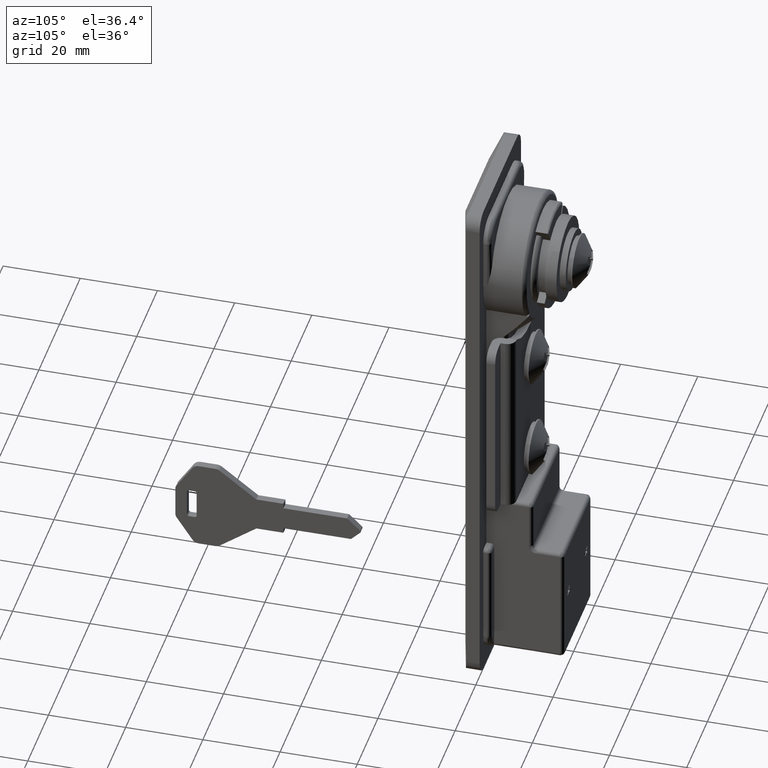
[diagram: clean part render]
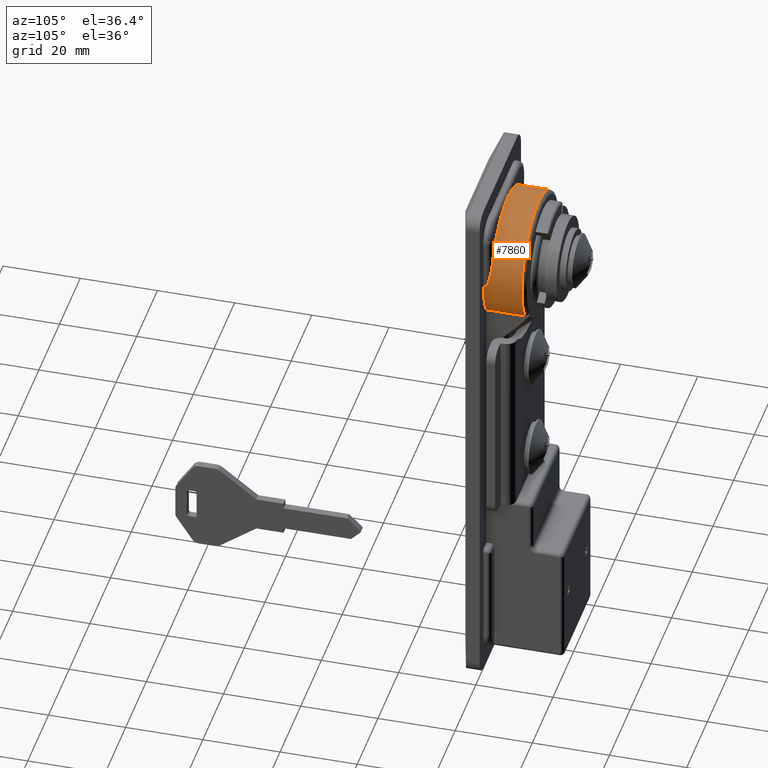
[diagram: same view with one face highlighted and labeled with its STEP entity id]
A machine part, auxiliary view. The second image highlights one B-rep face of the part: STEP entity #7860.
In plain terms, the highlighted face is a freeform B-spline surface patch.
Its self-contained STEP definition (entity closure, byte-faithful):
#4819=CARTESIAN_POINT('',(11.869441024556441,-13.400000000000141,-9.627513178432709));
#4820=VERTEX_POINT('',#4819);
#4885=CARTESIAN_POINT('',(11.869441024556441,-13.401034102112000,-9.626073706082419));
#4886=VERTEX_POINT('',#4885);
#4894=CARTESIAN_POINT('',(11.869441024556441,-13.400000000000141,-9.627513178432709));
#4895=CARTESIAN_POINT('',(11.869441024556441,-13.401034102112000,-9.626073706082419));
#4896=QUASI_UNIFORM_CURVE('',1,(#4894,#4895),.UNSPECIFIED.,.F.,.U.);
#4897=EDGE_CURVE('',#4820,#4886,#4896,.T.);
#5406=CARTESIAN_POINT('',(2.000000000000085,16.499970000000001,0.0));
#5407=VERTEX_POINT('',#5406);
#5408=CARTESIAN_POINT('',(3.000000000000085,15.499969999999999,5.656848946188919));
#5409=VERTEX_POINT('',#5408);
#5410=CARTESIAN_POINT('',(2.000000000000085,16.499970000000001,0.0));
#5411=CARTESIAN_POINT('',(2.014631581955225,16.499970000000008,0.059433975832413));
#5412=CARTESIAN_POINT('',(2.029319516271816,16.499647584783411,0.119096332957418));
#5413=CARTESIAN_POINT('',(2.058610617452791,16.498358553156841,0.238158371781019));
#5414=CARTESIAN_POINT('',(2.102492779955237,16.495459331913992,0.416651873815821));
#5415=CARTESIAN_POINT('',(2.146126896088788,16.489671339647021,0.594866222305607));
#5416=CARTESIAN_POINT('',(2.232837241315952,16.474256438833500,0.950974044292691));
#5417=CARTESIAN_POINT('',(2.289903452636324,16.458864583393950,1.187951112350682));
#5418=CARTESIAN_POINT('',(2.456992132655905,16.397326967065720,1.898010329734721));
#5419=CARTESIAN_POINT('',(2.563048036393508,16.335881606977289,2.370196234682563));
#5420=CARTESIAN_POINT('',(2.704955476159614,16.211995703977159,3.078582029428786));
#5421=CARTESIAN_POINT('',(2.749368883318634,16.165399761123780,3.314732575684789));
#5422=CARTESIAN_POINT('',(2.810050575421402,16.087256716884031,3.669309089877301));
#5423=CARTESIAN_POINT('',(2.829297332602070,16.059806588589169,3.787660443999647));
#5424=CARTESIAN_POINT('',(2.865334344282152,16.002312059148800,4.023651086209230));
#5425=CARTESIAN_POINT('',(2.882140291010408,15.972252550269030,4.141369204917849));
#5426=CARTESIAN_POINT('',(2.928384040325299,15.878113193670091,4.493734870947525));
#5427=CARTESIAN_POINT('',(2.953700714009987,15.810077635525520,4.727590306123485));
#5428=CARTESIAN_POINT('',(2.989475344891957,15.663219316584589,5.193479140659792));
#5429=CARTESIAN_POINT('',(3.000000000000085,15.584400120543680,5.425507372819686));
#5430=CARTESIAN_POINT('',(3.000000000000085,15.499969999999999,5.656848946188919));
#5431=B_SPLINE_CURVE_WITH_KNOTS('',3,(#5410,#5411,#5412,#5413,#5414,#5415,#5416,#5417,#5418,#5419,#5420,#5421,#5422,#5423,#5424,#5425,#5426,#5427,#5428,#5429,#5430),.UNSPECIFIED.,.F.,.U.,(4,2,1,2,2,2,2,2,2,2,4),(0.0,0.031250000000000,0.062500000000000,0.125000000000000,0.250000000000000,0.500000000000000,0.625000000000000,0.687500000000000,0.750000000000000,0.875000000000000,1.0),.UNSPECIFIED.);
#5432=EDGE_CURVE('',#5407,#5409,#5431,.T.);
#5635=CARTESIAN_POINT('',(3.000000000000085,-15.499980000000001,5.656821545753401));
#5636=VERTEX_POINT('',#5635);
#5637=CARTESIAN_POINT('',(2.000000000000085,-16.499974999999999,-1.515448E-015));
#5638=VERTEX_POINT('',#5637);
#5639=CARTESIAN_POINT('',(3.000000000000085,-15.499980000000001,5.656821545753401));
#5640=CARTESIAN_POINT('',(2.999915548810074,-15.509784938287860,5.629829172201444));
#5641=CARTESIAN_POINT('',(2.999745403742376,-15.529539093185461,5.575447236023450));
#5642=CARTESIAN_POINT('',(2.998392444439769,-15.558837073098539,5.493086836641107));
#5643=CARTESIAN_POINT('',(2.996240065144888,-15.588142294029760,5.409394194643096));
#5644=CARTESIAN_POINT('',(2.993206061628026,-15.617395123125300,5.324350556579905));
#5645=CARTESIAN_POINT('',(2.989312944011923,-15.646586079708690,5.237955698425984));
#5646=CARTESIAN_POINT('',(2.984554550936124,-15.675691528021590,5.150204483339940));
#5647=CARTESIAN_POINT('',(2.978932569273325,-15.704691283294940,5.061093290146160));
#5648=CARTESIAN_POINT('',(2.972446537663107,-15.733563791630360,4.970618264437003));
#5649=CARTESIAN_POINT('',(2.965096580993038,-15.762287449157441,4.878775806511641));
#5650=CARTESIAN_POINT('',(2.956882667984116,-15.790840239503691,4.785562453858510));
#5651=CARTESIAN_POINT('',(2.947804792286192,-15.819199837753709,4.690974904494457));
#5652=CARTESIAN_POINT('',(2.937863007039116,-15.847343563357789,4.595010097056586));
#5653=CARTESIAN_POINT('',(2.927057095415508,-15.875248464275890,4.497664913317824));
#5654=CARTESIAN_POINT('',(2.905290624703488,-15.926809849697250,4.313509415938667));
#5655=CARTESIAN_POINT('',(2.868032654764199,-16.000248060729110,4.035961966174074));
#5656=CARTESIAN_POINT('',(2.809034995103763,-16.091070382308661,3.657800306921391));
#5657=CARTESIAN_POINT('',(2.738724342653122,-16.177074948339062,3.257328768575450));
#5658=CARTESIAN_POINT('',(2.665799277348552,-16.248329193935010,2.878836414726715));
#5659=CARTESIAN_POINT('',(2.592326036645749,-16.307159174875078,2.522155258706928));
#5660=CARTESIAN_POINT('',(2.533186515872074,-16.346813020348030,2.248035502144647));
#5661=CARTESIAN_POINT('',(2.482005358498575,-16.376502204921401,2.017444454196749));
#5662=CARTESIAN_POINT('',(2.440494701933874,-16.398125940933920,1.833697696901011));
#5663=CARTESIAN_POINT('',(2.395070931930732,-16.419048711045519,1.636519473972271));
#5664=CARTESIAN_POINT('',(2.360573121140606,-16.433010279038019,1.487148311942626));
#5665=CARTESIAN_POINT('',(2.339057775661879,-16.440782156619171,1.396453904238660));
#5666=CARTESIAN_POINT('',(2.333217305242829,-16.442850801085871,1.371826195677506));
#5667=CARTESIAN_POINT('',(2.324479060393367,-16.445912689229051,1.334875923848832));
#5668=CARTESIAN_POINT('',(2.314236299042138,-16.449362257310359,1.291776779231756));
#5669=CARTESIAN_POINT('',(2.302565914851139,-16.453139988556071,1.242490000043705));
#5670=CARTESIAN_POINT('',(2.293767045696503,-16.455889421368020,1.205529494419694));
#5671=CARTESIAN_POINT('',(2.286436053070795,-16.458112739400260,1.174705646495167));
#5672=CARTESIAN_POINT('',(2.280601834637856,-16.459849307605310,1.150050804775226));
#5673=CARTESIAN_POINT('',(2.263782434310270,-16.464741806097120,1.079458214410668));
#5674=CARTESIAN_POINT('',(2.228716067930279,-16.473943088546420,0.934353852092513));
#5675=CARTESIAN_POINT('',(2.188095391823728,-16.482505605303750,0.765497964394102));
#5676=CARTESIAN_POINT('',(2.157342277112041,-16.487599007222560,0.640145713447175));
#5677=CARTESIAN_POINT('',(2.142748340799423,-16.489775018359438,0.580639891085152));
#5678=CARTESIAN_POINT('',(2.128192554029932,-16.491790337806879,0.521119115927947));
#5679=CARTESIAN_POINT('',(2.113702099065611,-16.493564208233462,0.461566008419776));
#5680=CARTESIAN_POINT('',(2.099229121978206,-16.495097336008591,0.402010659213582));
#5681=CARTESIAN_POINT('',(2.077445564308859,-16.497148159997639,0.312659821521635));
#5682=CARTESIAN_POINT('',(2.044505052216013,-16.499420108064950,0.178631093282932));
#5683=CARTESIAN_POINT('',(2.014838246319557,-16.499789995763329,0.059556657738288));
#5684=CARTESIAN_POINT('',(2.000000000000085,-16.499974999999999,-1.515448E-015));
#5685=B_SPLINE_CURVE_WITH_KNOTS('',3,(#5639,#5640,#5641,#5642,#5643,#5644,#5645,#5646,#5647,#5648,#5649,#5650,#5651,#5652,#5653,#5654,#5655,#5656,#5657,#5658,#5659,#5660,#5661,#5662,#5663,#5664,#5665,#5666,#5667,#5668,#5669,#5670,#5671,#5672,#5673,#5674,#5675,#5676,#5677,#5678,#5679,#5680,#5681,#5682,#5683,#5684),.UNSPECIFIED.,.F.,.U.,(4,1,1,1,1,1,1,1,1,1,1,1,1,1,1,1,1,1,1,1,1,1,1,1,1,1,1,1,1,1,1,1,1,1,1,1,1,1,1,1,1,1,1,4),(0.0,0.014668486153977,0.029552817069526,0.044654384580434,0.059974521311548,0.075514503656661,0.091275554596472,0.107258846364549,0.123465502969030,0.139896602577489,0.156553179772276,0.173436227683195,0.190546700004294,0.207885512901072,0.225453546814265,0.288856704874007,0.355731057316935,0.426345126425297,0.501100549780339,0.555915881155472,0.614754305112961,0.645748601034230,0.677510709338227,0.711603028188573,0.749650065576854,0.756135729995705,0.759378730122016,0.762621392195853,0.775592703851322,0.782074436740517,0.788564024478284,0.795049687033735,0.798297571511651,0.801535355208307,0.832200385573147,0.874690683013309,0.890348078797542,0.898177488420980,0.906005476334927,0.921662851430298,0.929496444157294,0.937320245449010,0.968649889694302,1.000000000000000),.UNSPECIFIED.);
#5686=EDGE_CURVE('',#5636,#5638,#5685,.T.);
#7503=CARTESIAN_POINT('',(6.500000000000000,13.399353831209000,-9.628412481139590));
#7504=VERTEX_POINT('',#7503);
#7505=CARTESIAN_POINT('',(6.500000000000000,13.400000000000000,-9.627513178432919));
#7506=VERTEX_POINT('',#7505);
#7507=CARTESIAN_POINT('',(6.500000000000000,13.399353831209000,-9.628412481139590));
#7508=CARTESIAN_POINT('',(6.500000000000000,13.400000000000000,-9.627513178432919));
#7509=QUASI_UNIFORM_CURVE('',1,(#7507,#7508),.UNSPECIFIED.,.F.,.U.);
#7510=EDGE_CURVE('',#7504,#7506,#7509,.T.);
#7551=CARTESIAN_POINT('',(1.000000000000084,13.400000000000000,-9.627513178432919));
#7552=VERTEX_POINT('',#7551);
#7558=CARTESIAN_POINT('',(1.000000000000084,13.400000000000000,-9.627513178432919));
#7559=CARTESIAN_POINT('',(6.500000000000000,13.400000000000000,-9.627513178432919));
#7560=QUASI_UNIFORM_CURVE('',1,(#7558,#7559),.UNSPECIFIED.,.F.,.U.);
#7561=EDGE_CURVE('',#7552,#7506,#7560,.T.);
#7618=CARTESIAN_POINT('',(1.000000000000084,-13.400000000000000,-9.627513178432919));
#7619=VERTEX_POINT('',#7618);
#7620=CARTESIAN_POINT('',(11.869441024556441,-13.400000000000141,-9.627513178432709));
#7621=CARTESIAN_POINT('',(1.000000000000084,-13.400000000000000,-9.627513178432919));
#7622=QUASI_UNIFORM_CURVE('',1,(#7620,#7621),.UNSPECIFIED.,.F.,.U.);
#7623=EDGE_CURVE('',#4820,#7619,#7622,.T.);
#7664=CARTESIAN_POINT('',(11.0,13.399353831209000,-9.628412481139590));
#7665=VERTEX_POINT('',#7664);
#7666=CARTESIAN_POINT('',(6.500000000000000,13.399353831209000,-9.628412481139590));
#7667=CARTESIAN_POINT('',(11.0,13.399353831209000,-9.628412481139590));
#7668=QUASI_UNIFORM_CURVE('',1,(#7666,#7667),.UNSPECIFIED.,.F.,.U.);
#7669=EDGE_CURVE('',#7504,#7665,#7668,.T.);
#7689=CARTESIAN_POINT('',(11.0,-13.401034102111980,-9.626073706082410));
#7690=VERTEX_POINT('',#7689);
#7691=CARTESIAN_POINT('',(11.869441024556441,-13.401034102112000,-9.626073706082419));
#7692=CARTESIAN_POINT('',(11.0,-13.401034102111980,-9.626073706082410));
#7693=QUASI_UNIFORM_CURVE('',1,(#7691,#7692),.UNSPECIFIED.,.F.,.U.);
#7694=EDGE_CURVE('',#4886,#7690,#7693,.T.);
#7740=CARTESIAN_POINT('',(12.141177050170350,13.090306314205160,-10.044545315801020));
#7741=CARTESIAN_POINT('',(0.721470573745826,13.090306314205160,-10.044545315801020));
#7742=CARTESIAN_POINT('',(12.141177050170352,22.348332127529396,2.020748826541943));
#7743=CARTESIAN_POINT('',(0.721470573745826,22.348332127529396,2.020748826541943));
#7744=CARTESIAN_POINT('',(12.141177050170350,11.076256496257139,12.229699588707049));
#7745=CARTESIAN_POINT('',(0.721470573745826,11.076256496257139,12.229699588707049));
#7746=CARTESIAN_POINT('',(12.141177050170352,-0.195819135015112,22.438650350872152));
#7747=CARTESIAN_POINT('',(0.721470573745826,-0.195819135015112,22.438650350872152));
#7748=CARTESIAN_POINT('',(12.141177050170350,-11.288007216571691,12.034529616047539));
#7749=CARTESIAN_POINT('',(0.721470573745826,-11.288007216571691,12.034529616047539));
#7750=CARTESIAN_POINT('',(12.141177050170352,-22.380195298128267,1.630408881222925));
#7751=CARTESIAN_POINT('',(0.721470573745826,-22.380195298128267,1.630408881222925));
#7752=CARTESIAN_POINT('',(12.141177050170350,-12.913011109820131,-10.271472829081610));
#7753=CARTESIAN_POINT('',(0.721470573745826,-12.913011109820131,-10.271472829081610));
#7761=(BOUNDED_SURFACE()B_SPLINE_SURFACE(1,2,((#7740,#7742,#7744,#7746,#7748,#7750,#7752),(#7741,#7743,#7745,#7747,#7749,#7751,#7753)),.UNSPECIFIED.,.F.,.F.,.U.)B_SPLINE_SURFACE_WITH_KNOTS((2,2),(3,2,2,3),(0.0,11.419706476424530),(0.0,25.776521880555020,51.553043761110047,77.329565641665070),.UNSPECIFIED.)GEOMETRIC_REPRESENTATION_ITEM()RATIONAL_B_SPLINE_SURFACE(((1.0,0.735309008059829,1.0,0.735309008059829,1.0,0.735309008059829,1.0),(1.0,0.735309008059829,1.0,0.735309008059829,1.0,0.735309008059829,1.0)))REPRESENTATION_ITEM('')SURFACE());
#7762=ORIENTED_EDGE('',*,*,#7623,.F.);
#7763=ORIENTED_EDGE('',*,*,#4897,.T.);
#7764=ORIENTED_EDGE('',*,*,#7694,.T.);
#7765=CARTESIAN_POINT('',(11.0,0.001444122665060,16.499969936803211));
#7766=VERTEX_POINT('',#7765);
#7767=CARTESIAN_POINT('',(11.0,-13.401034102111980,-9.626073706082410));
#7768=CARTESIAN_POINT('',(11.0,-14.171166333092190,-8.554394068793016));
#7769=CARTESIAN_POINT('',(10.999999999999980,-15.429331367402410,-6.266551732921797));
#7770=CARTESIAN_POINT('',(11.000000000000030,-16.369136726155840,-2.834316013450303));
#7771=CARTESIAN_POINT('',(11.000000000000041,-16.599693541460820,0.658803438139472));
#7772=CARTESIAN_POINT('',(10.999999999999920,-16.183076682760429,3.714638942496257));
#7773=CARTESIAN_POINT('',(10.999999999999879,-15.253034279341570,6.444183535574317));
#7774=CARTESIAN_POINT('',(11.000000000001000,-13.980922095745910,8.924308676978903));
#7775=CARTESIAN_POINT('',(10.999999999998581,-11.973897195355359,11.566778647350301));
#7776=CARTESIAN_POINT('',(10.999999999999570,-9.225880197016224,13.833549354112860));
#7777=CARTESIAN_POINT('',(11.000000000000540,-6.406820860944597,15.284836566469790));
#7778=CARTESIAN_POINT('',(10.999999999999520,-3.439082117305366,16.244354507581960));
#7779=CARTESIAN_POINT('',(11.000000000000250,-1.318293216080025,16.500422089414460));
#7780=CARTESIAN_POINT('',(11.0,0.001444122665060,16.499969936803211));
#7781=B_SPLINE_CURVE_WITH_KNOTS('',3,(#7767,#7768,#7769,#7770,#7771,#7772,#7773,#7774,#7775,#7776,#7777,#7778,#7779,#7780),.UNSPECIFIED.,.F.,.U.,(4,1,1,1,1,1,1,1,1,1,1,4),(0.000000322419069,3.959046438731264,7.776819144898735,10.604771643117591,14.422488292174441,16.967634966399739,19.229961450022380,22.764891184775259,26.865411619294921,29.834753645872642,32.238499419711601,36.197610625104460),.UNSPECIFIED.);
#7782=EDGE_CURVE('',#7690,#7766,#7781,.T.);
#7783=ORIENTED_EDGE('',*,*,#7782,.T.);
#7784=CARTESIAN_POINT('',(11.0,0.001444122665060,16.499969936803211));
#7785=CARTESIAN_POINT('',(11.000000000000011,1.321147052152936,16.500165465728919));
#7786=CARTESIAN_POINT('',(10.999999999999989,4.007519821299253,16.175616938073588));
#7787=CARTESIAN_POINT('',(11.000000000000069,7.602420897540679,14.805200926315640));
#7788=CARTESIAN_POINT('',(10.999999999999901,10.316367833148339,12.982101238002320));
#7789=CARTESIAN_POINT('',(10.999999999999989,12.331373872442491,11.056174551622229));
#7790=CARTESIAN_POINT('',(11.0,14.066755530601110,8.811444549148600));
#7791=CARTESIAN_POINT('',(10.999999999999989,15.439455593772340,6.105982360677404));
#7792=CARTESIAN_POINT('',(11.000000000000041,16.253479628556718,3.239077221066720));
#7793=CARTESIAN_POINT('',(11.000000000000030,16.570507916322281,0.468060704669678));
#7794=CARTESIAN_POINT('',(10.999999999999790,16.437073188708080,-2.036517371734746));
#7795=CARTESIAN_POINT('',(11.000000000000680,15.913053683296241,-4.580088392655963));
#7796=CARTESIAN_POINT('',(10.999999999998341,15.007509408281489,-7.069609620671820));
#7797=CARTESIAN_POINT('',(11.000000000001720,14.004511284569981,-8.786435386170135));
#7798=CARTESIAN_POINT('',(11.0,13.399353831209000,-9.628412481139590));
#7799=B_SPLINE_CURVE_WITH_KNOTS('',3,(#7784,#7785,#7786,#7787,#7788,#7789,#7790,#7791,#7792,#7793,#7794,#7795,#7796,#7797,#7798),.UNSPECIFIED.,.F.,.U.,(4,1,1,1,1,1,1,1,1,1,1,1,4),(0.000000322487885,3.959045513816932,8.059611261057704,11.453181845593290,13.715501196639000,16.402130393286480,19.936958619857641,22.764885865873591,25.310016567857382,28.279391358148221,30.258963526443321,33.086947399859163,36.197602167722593),.UNSPECIFIED.);
#7800=EDGE_CURVE('',#7766,#7665,#7799,.T.);
#7801=ORIENTED_EDGE('',*,*,#7800,.T.);
#7802=ORIENTED_EDGE('',*,*,#7669,.F.);
#7803=ORIENTED_EDGE('',*,*,#7510,.T.);
#7804=ORIENTED_EDGE('',*,*,#7561,.F.);
#7805=CARTESIAN_POINT('',(1.000000000000084,16.499970000000001,0.0));
#7806=VERTEX_POINT('',#7805);
#7807=CARTESIAN_POINT('',(1.000000000000084,16.499970000000001,0.0));
#7808=CARTESIAN_POINT('',(1.000000000000084,16.500029001091789,-0.910187700599763));
#7809=CARTESIAN_POINT('',(1.000000000000084,16.344550168778031,-2.784078187515002));
#7810=CARTESIAN_POINT('',(1.000000000000087,15.483354522215540,-6.114301958450427));
#7811=CARTESIAN_POINT('',(1.000000000000083,14.306530389215370,-8.366865167339704));
#7812=CARTESIAN_POINT('',(1.000000000000084,13.400000000000000,-9.627513178432919));
#7813=B_SPLINE_CURVE_WITH_KNOTS('',3,(#7807,#7808,#7809,#7810,#7811,#7812),.UNSPECIFIED.,.F.,.U.,(4,1,1,4),(0.000000028171275,2.730568394096802,5.621746338060940,10.279776478910710),.UNSPECIFIED.);
#7814=EDGE_CURVE('',#7806,#7552,#7813,.T.);
#7815=ORIENTED_EDGE('',*,*,#7814,.F.);
#7816=CARTESIAN_POINT('',(1.000000000000084,16.499970000000001,0.0));
#7817=CARTESIAN_POINT('',(2.000000000000085,16.499970000000001,0.0));
#7818=QUASI_UNIFORM_CURVE('',1,(#7816,#7817),.UNSPECIFIED.,.F.,.U.);
#7819=EDGE_CURVE('',#7806,#5407,#7818,.T.);
#7820=ORIENTED_EDGE('',*,*,#7819,.T.);
#7821=ORIENTED_EDGE('',*,*,#5432,.T.);
#7822=CARTESIAN_POINT('',(3.000000000000085,-15.499980000000001,5.656821545753401));
#7823=CARTESIAN_POINT('',(3.000000000000082,-15.212269310186439,6.445272147610589));
#7824=CARTESIAN_POINT('',(3.000000000000088,-14.472688010539629,8.074007551467556));
#7825=CARTESIAN_POINT('',(3.000000000000087,-13.040776339489250,10.220112714619759));
#7826=CARTESIAN_POINT('',(3.000000000000093,-11.256397404877850,12.151735838120709));
#7827=CARTESIAN_POINT('',(3.000000000000040,-8.827344017790786,14.086425224979189));
#7828=CARTESIAN_POINT('',(3.000000000000159,-5.797839539237943,15.597019347219330));
#7829=CARTESIAN_POINT('',(2.999999999999995,-2.776508185795780,16.331117316760171));
#7830=CARTESIAN_POINT('',(3.000000000000200,-0.001914544306992,16.569898288146842));
#7831=CARTESIAN_POINT('',(3.000000000000062,2.574790689706635,16.385285624427890));
#7832=CARTESIAN_POINT('',(3.000000000000068,5.430897042787661,15.662064590634831));
#7833=CARTESIAN_POINT('',(3.000000000000081,8.275141442603976,14.409486536656781));
#7834=CARTESIAN_POINT('',(3.000000000000148,10.982640080567650,12.476703285661410));
#7835=CARTESIAN_POINT('',(2.999999999999880,13.650652151291689,9.560623177616598));
#7836=CARTESIAN_POINT('',(3.000000000000445,14.943029108081291,7.184811331344449));
#7837=CARTESIAN_POINT('',(3.000000000000085,15.499969999999999,5.656848946188919));
#7838=B_SPLINE_CURVE_WITH_KNOTS('',3,(#7822,#7823,#7824,#7825,#7826,#7827,#7828,#7829,#7830,#7831,#7832,#7833,#7834,#7835,#7836,#7837),.UNSPECIFIED.,.F.,.U.,(4,1,1,1,1,1,1,1,1,1,1,1,1,4),(0.000000385284231,2.517925698747646,5.350757327779370,7.711456727190566,10.386862808813490,14.636058680451820,17.783654367377089,19.672136433746299,22.976898258716311,25.494998171053290,28.485148151913460,32.262224245315103,35.409768996432767,40.288419789140377),.UNSPECIFIED.);
#7839=EDGE_CURVE('',#5636,#5409,#7838,.T.);
#7840=ORIENTED_EDGE('',*,*,#7839,.F.);
#7841=ORIENTED_EDGE('',*,*,#5686,.T.);
#7842=CARTESIAN_POINT('',(1.000000000000084,-16.499980000000001,0.0));
#7843=VERTEX_POINT('',#7842);
#7844=CARTESIAN_POINT('',(1.000000000000084,-16.499980000000001,0.0));
#7845=CARTESIAN_POINT('',(2.000000000000085,-16.499974999999999,-1.515448E-015));
#7846=QUASI_UNIFORM_CURVE('',1,(#7844,#7845),.UNSPECIFIED.,.F.,.U.);
#7847=EDGE_CURVE('',#7843,#5638,#7846,.T.);
#7848=ORIENTED_EDGE('',*,*,#7847,.F.);
#7849=CARTESIAN_POINT('',(1.000000000000084,-13.400000000000000,-9.627513178432919));
#7850=CARTESIAN_POINT('',(1.000000000000081,-14.181288034363529,-8.540638706275876));
#7851=CARTESIAN_POINT('',(1.000000000000089,-15.165840105010821,-6.743033725689811));
#7852=CARTESIAN_POINT('',(1.000000000000080,-16.234038373156281,-3.479924372051266));
#7853=CARTESIAN_POINT('',(1.000000000000086,-16.500393856452352,-1.392108417345621));
#7854=CARTESIAN_POINT('',(1.000000000000084,-16.499980000000001,0.0));
#7855=B_SPLINE_CURVE_WITH_KNOTS('',3,(#7849,#7850,#7851,#7852,#7853,#7854),.UNSPECIFIED.,.F.,.U.,(4,1,1,4),(0.000000028170396,4.015545362833107,6.103610112469736,10.279779491990009),.UNSPECIFIED.);
#7856=EDGE_CURVE('',#7619,#7843,#7855,.T.);
#7857=ORIENTED_EDGE('',*,*,#7856,.F.);
#7858=EDGE_LOOP('',(#7762,#7763,#7764,#7783,#7801,#7802,#7803,#7804,#7815,#7820,#7821,#7840,#7841,#7848,#7857));
#7859=FACE_OUTER_BOUND('',#7858,.T.);
#7860=ADVANCED_FACE('',(#7859),#7761,.T.);